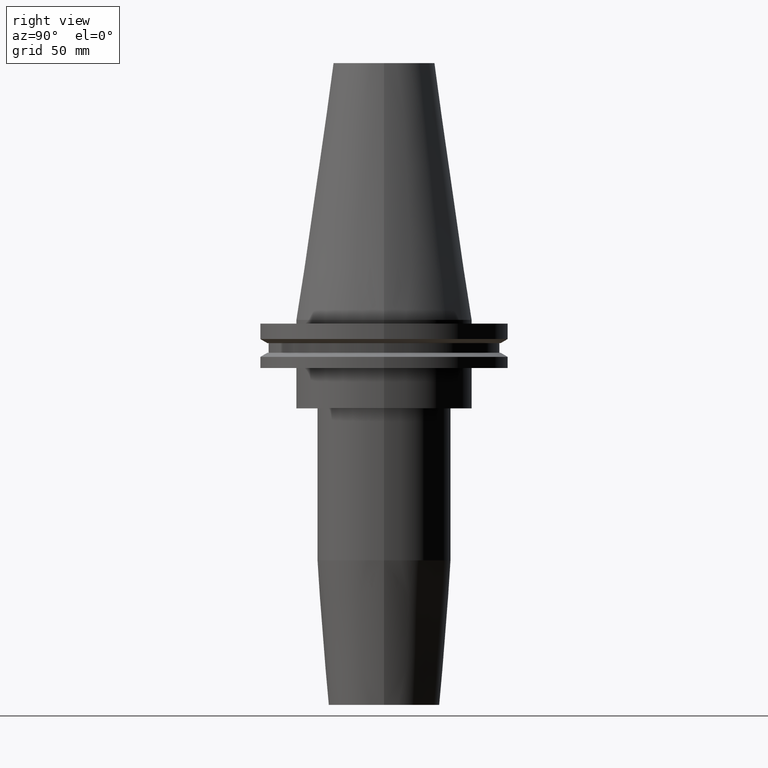
[diagram: clean part render]
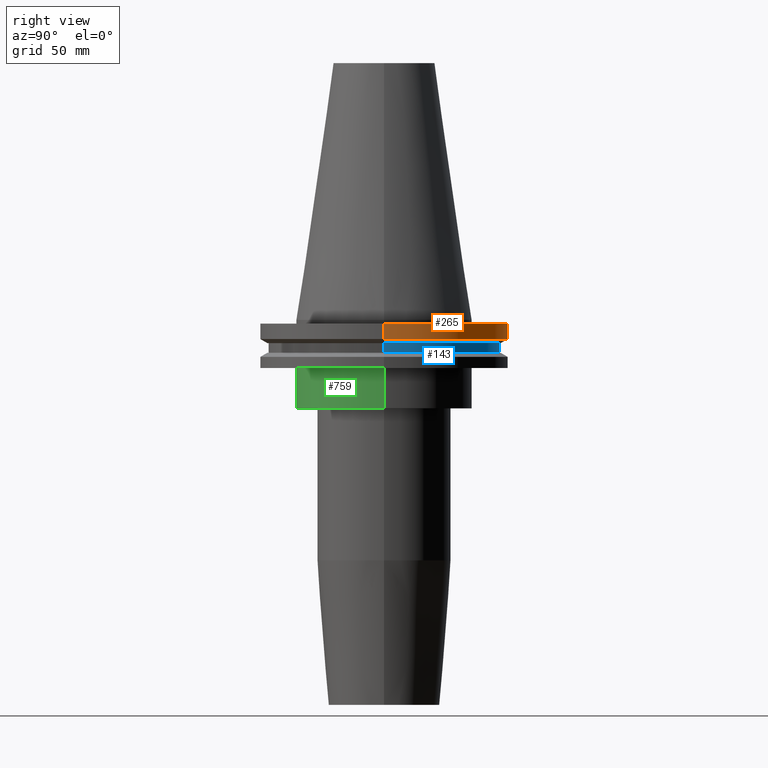
[diagram: same view with three faces highlighted in distinct colors, each labeled with its STEP entity id]
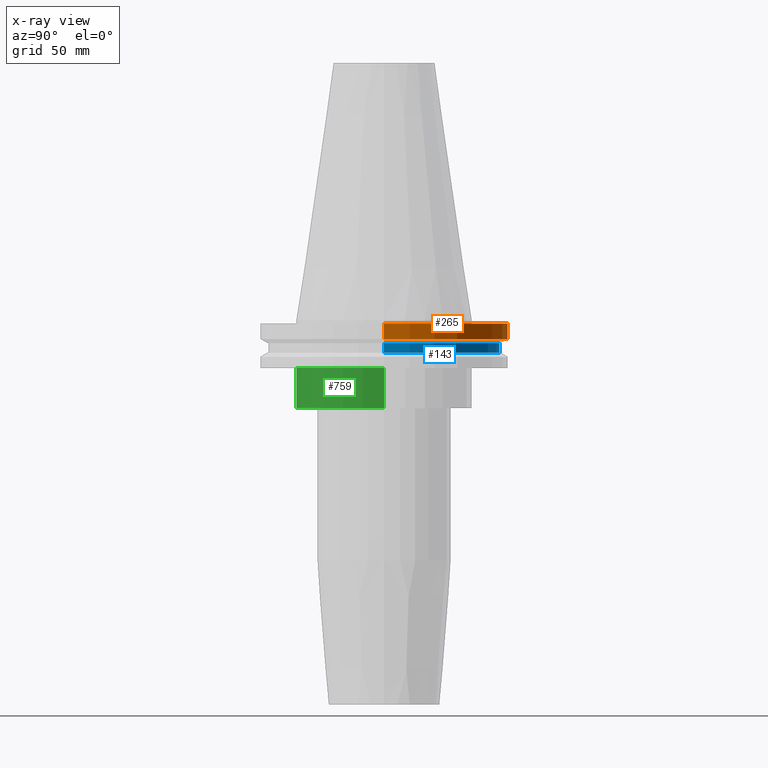
[diagram: x-ray of the same camera — body ghosted, the three highlighted faces saturated]
A machine part, right view with three faces highlighted in distinct colors.
The next image is the same camera in x-ray (body ghosted, the three faces saturated) — at least one of them is partly hidden behind the body in this view.
Their STEP definitions:

[orange] entity #265 — the highlighted cylindrical surface (partial cylindrical patch) has radius 49.215 mm, axis along (-0, -0, 1).
#3 = ORIENTED_EDGE ( 'NONE', *, *, #600, .T. ) ;
#124 = CARTESIAN_POINT ( 'NONE',  ( 49.21500000000000341, 0.000000000000000000, -7.602389855251287187 ) ) ;
#194 = DIRECTION ( 'NONE',  ( 1.000000000000000000, 0.000000000000000000, 0.000000000000000000 ) ) ;
#195 = FACE_OUTER_BOUND ( 'NONE', #372, .T. ) ;
#205 = CIRCLE ( 'NONE', #677, 49.21499999999999631 ) ;
#213 = ORIENTED_EDGE ( 'NONE', *, *, #842, .F. ) ;
#221 = CARTESIAN_POINT ( 'NONE',  ( 49.21499999999999631, 0.000000000000000000, 101.5999999999999943 ) ) ;
#236 = ORIENTED_EDGE ( 'NONE', *, *, #758, .F. ) ;
#244 = CIRCLE ( 'NONE', #649, 49.21500000000000341 ) ;
#265 = ADVANCED_FACE ( 'NONE', ( #195 ), #642, .T. ) ;
#306 = CARTESIAN_POINT ( 'NONE',  ( 49.21499999999999631, 0.000000000000000000, -1.499999999999987566 ) ) ;
#313 = VERTEX_POINT ( 'NONE', #321 ) ;
#316 = VERTEX_POINT ( 'NONE', #658 ) ;
#321 = CARTESIAN_POINT ( 'NONE',  ( -49.21500000000000341, 6.027099222003699404E-15, -7.602389855251287187 ) ) ;
#324 = VECTOR ( 'NONE', #461, 1000.000000000000000 ) ;
#372 = EDGE_LOOP ( 'NONE', ( #788, #3, #236, #213 ) ) ;
#384 = CARTESIAN_POINT ( 'NONE',  ( -49.21499999999999631, 6.027099222003697826E-15, 101.5999999999999943 ) ) ;
#390 = DIRECTION ( 'NONE',  ( -0.000000000000000000, -0.000000000000000000, 1.000000000000000000 ) ) ;
#446 = CARTESIAN_POINT ( 'NONE',  ( 0.000000000000000000, 0.000000000000000000, 101.5999999999999943 ) ) ;
#461 = DIRECTION ( 'NONE',  ( -0.000000000000000000, -0.000000000000000000, 1.000000000000000000 ) ) ;
#463 = VERTEX_POINT ( 'NONE', #306 ) ;
#546 = EDGE_CURVE ( 'NONE', #719, #313, #244, .T. ) ;
#551 = DIRECTION ( 'NONE',  ( 1.000000000000000000, 0.000000000000000000, 0.000000000000000000 ) ) ;
#562 = CARTESIAN_POINT ( 'NONE',  ( 0.000000000000000000, 0.000000000000000000, -7.602389855251287187 ) ) ;
#600 = EDGE_CURVE ( 'NONE', #313, #316, #785, .T. ) ;
#642 = CYLINDRICAL_SURFACE ( 'NONE', #668, 49.21499999999999631 ) ;
#649 = AXIS2_PLACEMENT_3D ( 'NONE', #562, #689, #551 ) ;
#652 = DIRECTION ( 'NONE',  ( -0.000000000000000000, -0.000000000000000000, 1.000000000000000000 ) ) ;
#658 = CARTESIAN_POINT ( 'NONE',  ( -49.21499999999999631, 6.027099222003697826E-15, -1.499999999999987566 ) ) ;
#668 = AXIS2_PLACEMENT_3D ( 'NONE', #446, #652, #711 ) ;
#677 = AXIS2_PLACEMENT_3D ( 'NONE', #783, #776, #194 ) ;
#689 = DIRECTION ( 'NONE',  ( -0.000000000000000000, -0.000000000000000000, 1.000000000000000000 ) ) ;
#711 = DIRECTION ( 'NONE',  ( 1.000000000000000000, 0.000000000000000000, 0.000000000000000000 ) ) ;
#719 = VERTEX_POINT ( 'NONE', #124 ) ;
#758 = EDGE_CURVE ( 'NONE', #463, #316, #205, .T. ) ;
#776 = DIRECTION ( 'NONE',  ( -0.000000000000000000, -0.000000000000000000, 1.000000000000000000 ) ) ;
#783 = CARTESIAN_POINT ( 'NONE',  ( 0.000000000000000000, 0.000000000000000000, -1.499999999999987566 ) ) ;
#785 = LINE ( 'NONE', #384, #798 ) ;
#788 = ORIENTED_EDGE ( 'NONE', *, *, #546, .T. ) ;
#789 = LINE ( 'NONE', #221, #324 ) ;
#798 = VECTOR ( 'NONE', #390, 1000.000000000000000 ) ;
#842 = EDGE_CURVE ( 'NONE', #719, #463, #789, .T. ) ;

[blue] entity #143 — the highlighted cylindrical surface (partial cylindrical patch) has radius 45.645 mm, axis along (-0, -0, 1).
#16 = EDGE_CURVE ( 'NONE', #584, #319, #218, .T. ) ;
#31 = ORIENTED_EDGE ( 'NONE', *, *, #220, .T. ) ;
#48 = CARTESIAN_POINT ( 'NONE',  ( -45.64500000000000313, 5.589900314708094957E-15, 101.5999999999999943 ) ) ;
#49 = ORIENTED_EDGE ( 'NONE', *, *, #99, .F. ) ;
#99 = EDGE_CURVE ( 'NONE', #319, #264, #516, .T. ) ;
#101 = CARTESIAN_POINT ( 'NONE',  ( 0.000000000000000000, 0.000000000000000000, -13.05499999999999794 ) ) ;
#104 = CYLINDRICAL_SURFACE ( 'NONE', #597, 45.64500000000000313 ) ;
#125 = ORIENTED_EDGE ( 'NONE', *, *, #16, .F. ) ;
#143 = ADVANCED_FACE ( 'NONE', ( #298 ), #104, .T. ) ;
#218 = LINE ( 'NONE', #277, #356 ) ;
#220 = EDGE_CURVE ( 'NONE', #584, #698, #628, .T. ) ;
#242 = CARTESIAN_POINT ( 'NONE',  ( 45.64500000000000313, 0.000000000000000000, -13.05499999999999794 ) ) ;
#243 = DIRECTION ( 'NONE',  ( -0.000000000000000000, -0.000000000000000000, 1.000000000000000000 ) ) ;
#264 = VERTEX_POINT ( 'NONE', #526 ) ;
#277 = CARTESIAN_POINT ( 'NONE',  ( 45.64500000000000313, 0.000000000000000000, 101.5999999999999943 ) ) ;
#293 = EDGE_CURVE ( 'NONE', #698, #264, #727, .T. ) ;
#298 = FACE_OUTER_BOUND ( 'NONE', #604, .T. ) ;
#311 = CARTESIAN_POINT ( 'NONE',  ( 0.000000000000000000, 0.000000000000000000, -9.204999999999991189 ) ) ;
#318 = DIRECTION ( 'NONE',  ( -0.000000000000000000, -0.000000000000000000, 1.000000000000000000 ) ) ;
#319 = VERTEX_POINT ( 'NONE', #515 ) ;
#356 = VECTOR ( 'NONE', #547, 1000.000000000000000 ) ;
#367 = DIRECTION ( 'NONE',  ( -0.000000000000000000, -0.000000000000000000, 1.000000000000000000 ) ) ;
#370 = DIRECTION ( 'NONE',  ( 1.000000000000000000, 0.000000000000000000, 0.000000000000000000 ) ) ;
#458 = CARTESIAN_POINT ( 'NONE',  ( -45.64500000000000313, 5.589900314708094957E-15, -13.05499999999999794 ) ) ;
#515 = CARTESIAN_POINT ( 'NONE',  ( 45.64500000000000313, 0.000000000000000000, -9.204999999999991189 ) ) ;
#516 = CIRCLE ( 'NONE', #830, 45.64500000000000313 ) ;
#526 = CARTESIAN_POINT ( 'NONE',  ( -45.64500000000000313, 5.589900314708094957E-15, -9.204999999999991189 ) ) ;
#547 = DIRECTION ( 'NONE',  ( -0.000000000000000000, -0.000000000000000000, 1.000000000000000000 ) ) ;
#553 = DIRECTION ( 'NONE',  ( 1.000000000000000000, 0.000000000000000000, 0.000000000000000000 ) ) ;
#559 = AXIS2_PLACEMENT_3D ( 'NONE', #101, #367, #623 ) ;
#584 = VERTEX_POINT ( 'NONE', #242 ) ;
#597 = AXIS2_PLACEMENT_3D ( 'NONE', #638, #243, #370 ) ;
#604 = EDGE_LOOP ( 'NONE', ( #31, #774, #49, #125 ) ) ;
#623 = DIRECTION ( 'NONE',  ( 1.000000000000000000, 0.000000000000000000, 0.000000000000000000 ) ) ;
#628 = CIRCLE ( 'NONE', #559, 45.64500000000000313 ) ;
#638 = CARTESIAN_POINT ( 'NONE',  ( 0.000000000000000000, 0.000000000000000000, 101.5999999999999943 ) ) ;
#698 = VERTEX_POINT ( 'NONE', #458 ) ;
#727 = LINE ( 'NONE', #48, #741 ) ;
#741 = VECTOR ( 'NONE', #318, 1000.000000000000000 ) ;
#774 = ORIENTED_EDGE ( 'NONE', *, *, #293, .T. ) ;
#830 = AXIS2_PLACEMENT_3D ( 'NONE', #311, #833, #553 ) ;
#833 = DIRECTION ( 'NONE',  ( -0.000000000000000000, -0.000000000000000000, 1.000000000000000000 ) ) ;

[green] entity #759 — the highlighted cylindrical surface (partial cylindrical patch) has radius 34.925 mm, axis along (-0, -0, 1).
#29 = EDGE_CURVE ( 'NONE', #667, #341, #209, .T. ) ;
#57 = ORIENTED_EDGE ( 'NONE', *, *, #703, .F. ) ;
#68 = ORIENTED_EDGE ( 'NONE', *, *, #29, .T. ) ;
#75 = EDGE_LOOP ( 'NONE', ( #57, #68, #153, #268 ) ) ;
#84 = VECTOR ( 'NONE', #127, 1000.000000000000000 ) ;
#108 = CARTESIAN_POINT ( 'NONE',  ( 0.000000000000000000, 0.000000000000000000, -19.04999999999999716 ) ) ;
#127 = DIRECTION ( 'NONE',  ( -0.000000000000000000, -0.000000000000000000, 1.000000000000000000 ) ) ;
#153 = ORIENTED_EDGE ( 'NONE', *, *, #707, .T. ) ;
#154 = DIRECTION ( 'NONE',  ( -0.000000000000000000, -0.000000000000000000, 1.000000000000000000 ) ) ;
#161 = DIRECTION ( 'NONE',  ( 1.000000000000000000, 0.000000000000000000, 0.000000000000000000 ) ) ;
#198 = EDGE_CURVE ( 'NONE', #661, #811, #557, .T. ) ;
#206 = LINE ( 'NONE', #838, #398 ) ;
#209 = CIRCLE ( 'NONE', #817, 34.92499999999999716 ) ;
#225 = CYLINDRICAL_SURFACE ( 'NONE', #509, 34.92499999999999716 ) ;
#239 = DIRECTION ( 'NONE',  ( 1.000000000000000000, 0.000000000000000000, 0.000000000000000000 ) ) ;
#268 = ORIENTED_EDGE ( 'NONE', *, *, #198, .F. ) ;
#272 = DIRECTION ( 'NONE',  ( 1.000000000000000000, 0.000000000000000000, 0.000000000000000000 ) ) ;
#317 = DIRECTION ( 'NONE',  ( -0.000000000000000000, -0.000000000000000000, 1.000000000000000000 ) ) ;
#341 = VERTEX_POINT ( 'NONE', #609 ) ;
#354 = CARTESIAN_POINT ( 'NONE',  ( 0.000000000000000000, 0.000000000000000000, 101.5999999999999943 ) ) ;
#381 = LINE ( 'NONE', #640, #84 ) ;
#398 = VECTOR ( 'NONE', #317, 1000.000000000000000 ) ;
#412 = CARTESIAN_POINT ( 'NONE',  ( 34.92499999999999716, 0.000000000000000000, -19.04999999999999716 ) ) ;
#445 = FACE_OUTER_BOUND ( 'NONE', #75, .T. ) ;
#509 = AXIS2_PLACEMENT_3D ( 'NONE', #354, #154, #272 ) ;
#557 = CIRCLE ( 'NONE', #780, 34.92499999999999716 ) ;
#609 = CARTESIAN_POINT ( 'NONE',  ( 34.92499999999999716, 0.000000000000000000, -35.04999999999999716 ) ) ;
#613 = CARTESIAN_POINT ( 'NONE',  ( 0.000000000000000000, 0.000000000000000000, -35.04999999999999716 ) ) ;
#640 = CARTESIAN_POINT ( 'NONE',  ( 34.92499999999999716, 0.000000000000000000, 101.5999999999999943 ) ) ;
#657 = CARTESIAN_POINT ( 'NONE',  ( -34.92499999999999716, 4.277078946022130887E-15, -35.04999999999999716 ) ) ;
#661 = VERTEX_POINT ( 'NONE', #779 ) ;
#667 = VERTEX_POINT ( 'NONE', #657 ) ;
#703 = EDGE_CURVE ( 'NONE', #667, #661, #206, .T. ) ;
#707 = EDGE_CURVE ( 'NONE', #341, #811, #381, .T. ) ;
#757 = DIRECTION ( 'NONE',  ( -0.000000000000000000, -0.000000000000000000, 1.000000000000000000 ) ) ;
#759 = ADVANCED_FACE ( 'NONE', ( #445 ), #225, .T. ) ;
#779 = CARTESIAN_POINT ( 'NONE',  ( -34.92499999999999716, 4.277078946022130887E-15, -19.04999999999999716 ) ) ;
#780 = AXIS2_PLACEMENT_3D ( 'NONE', #108, #757, #239 ) ;
#802 = DIRECTION ( 'NONE',  ( -0.000000000000000000, -0.000000000000000000, 1.000000000000000000 ) ) ;
#811 = VERTEX_POINT ( 'NONE', #412 ) ;
#817 = AXIS2_PLACEMENT_3D ( 'NONE', #613, #802, #161 ) ;
#838 = CARTESIAN_POINT ( 'NONE',  ( -34.92499999999999716, 4.277078946022130887E-15, 101.5999999999999943 ) ) ;